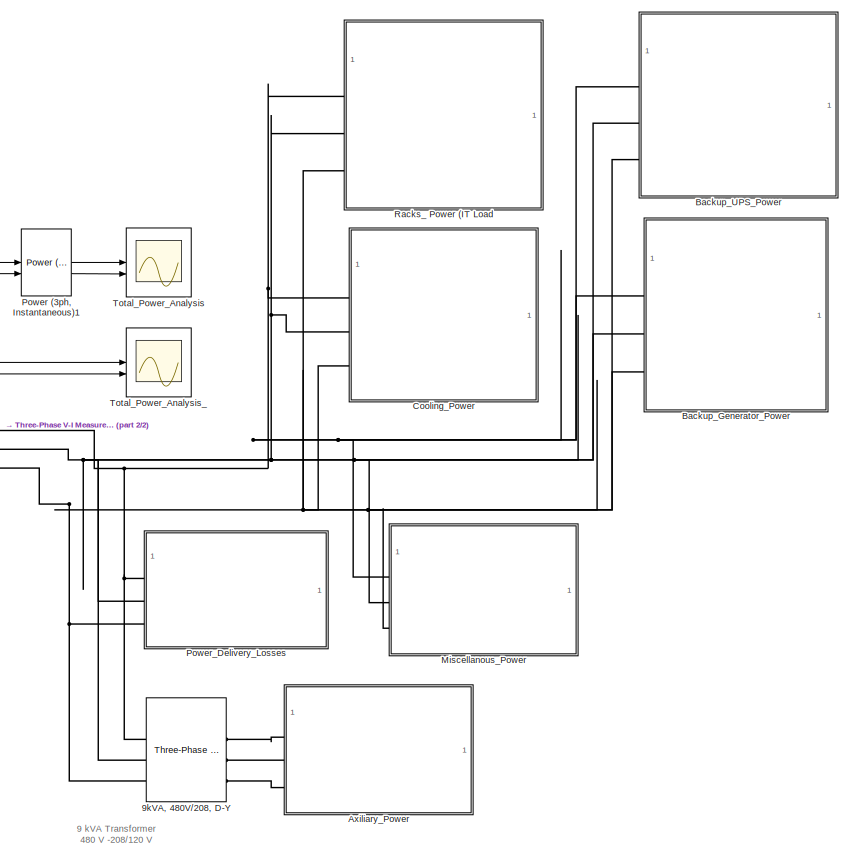
[diagram: root canvas - part 1/2, right side, full height]
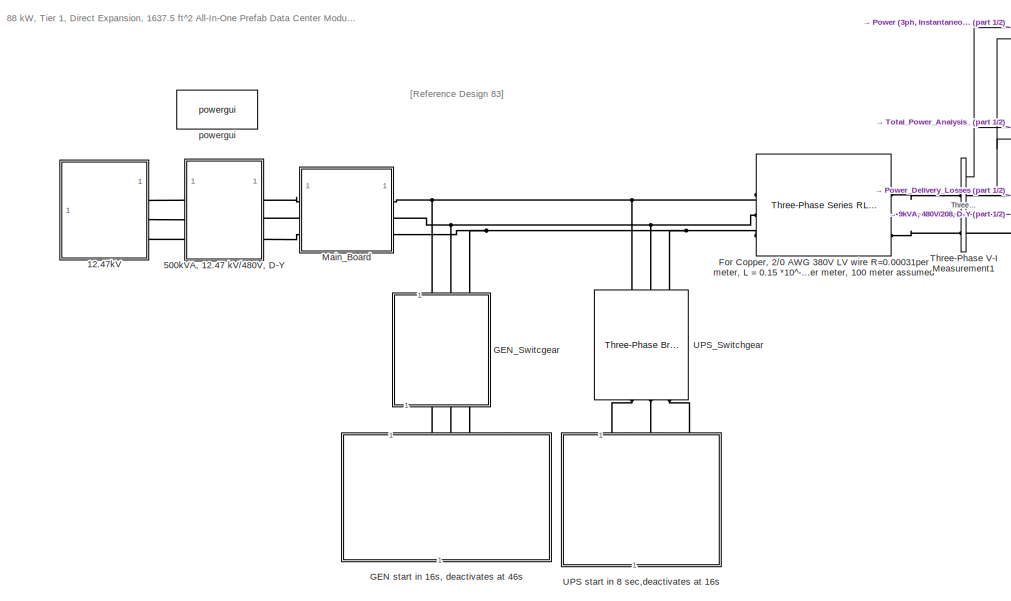
[diagram: root canvas - part 2/2, middle left region]
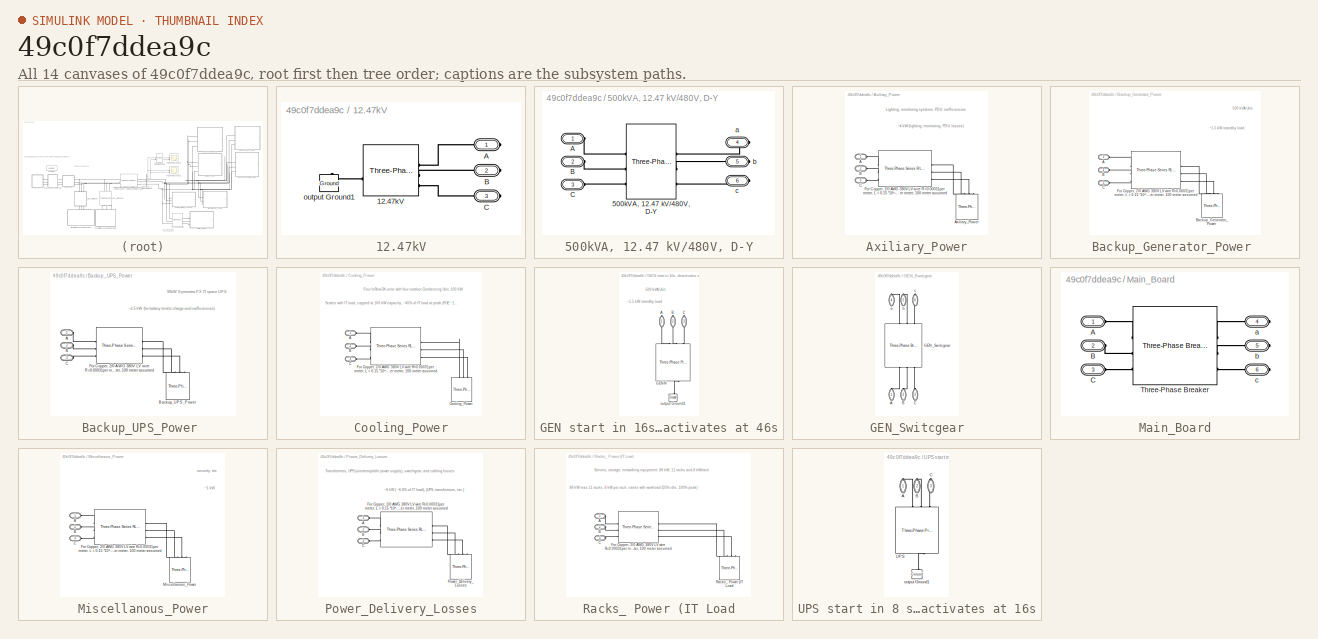
[diagram: thumbnail index - all 14 canvases of the model, root first then tree order]
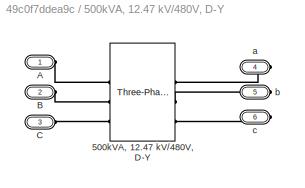
MODEL slx_49c0f7ddea9c
KIND model
CONFIG AbsTol = auto
CONFIG EnableMultiTasking = off
CONFIG FixedStep = auto
CONFIG MaxStep = auto
CONFIG MinStep = auto
CONFIG RelTol = 1e-3
CONFIG SampleTimeConstraint = Unconstrained
CONFIG SolverName = VariableStepAuto
CONFIG StartTime = 0.0
CONFIG StopTime = 60
BLOCK [SubSystem] 12.47kV
BLOCK [Reference] 12.47kV/12.47kV  REF=spsThreePhaseProgrammableVoltageSourceLib/Three-Phase
Programmable
Voltage Source
  SourceBlock = spsThreePhaseProgrammableVoltageSourceLib/Three-Phase\nProgrammable\nVoltage Source
  SourceType = Three-Phase Programmable Voltage Source
BLOCK [PMIOPort] 12.47kV/A
  Side = Right
BLOCK [PMIOPort] 12.47kV/B
  Port = 2
  Side = Right
BLOCK [PMIOPort] 12.47kV/C
  Port = 3
  Side = Right
BLOCK [Reference] 12.47kV/output Ground1  REF=spsGroundLib/Ground
  AttributesFormatString = \n
  NameLocation = right
  SourceBlock = spsGroundLib/Ground
  SourceType = Ground
BLOCK [SubSystem] 500kVA, 12.47 kV//480V, D-Y
BLOCK [Reference] 500kVA, 12.47 kV//480V, D-Y/500kVA, 12.47 kV//480V, D-Y  REF=spsThreePhaseTransformerTwoWindingsLib/Three-Phase
Transformer
(Two Windings)
  LibrarySourceBlock = sps_lib/Power Grid Elements/Three-Phase\nTransformer\n(Two Windings)
  SourceBlock = spsThreePhaseTransformerTwoWindingsLib/Three-Phase\nTransformer\n(Two Windings)
  SourceType = Three-Phase Transformer (Two Windings)
BLOCK [PMIOPort] 500kVA, 12.47 kV//480V, D-Y/A
  Side = Left
BLOCK [PMIOPort] 500kVA, 12.47 kV//480V, D-Y/B
  Port = 2
  Side = Left
BLOCK [PMIOPort] 500kVA, 12.47 kV//480V, D-Y/C
  Port = 3
  Side = Left
BLOCK [PMIOPort] 500kVA, 12.47 kV//480V, D-Y/a
  Port = 4
  Side = Right
BLOCK [PMIOPort] 500kVA, 12.47 kV//480V, D-Y/b
  Port = 5
  Side = Right
BLOCK [PMIOPort] 500kVA, 12.47 kV//480V, D-Y/c
  Port = 6
  Side = Right
BLOCK [Reference] 9kVA, 480V//208, D-Y  REF=spsThreePhaseTransformerTwoWindingsLib/Three-Phase
Transformer
(Two Windings)
  LibrarySourceBlock = sps_lib/Power Grid Elements/Three-Phase\nTransformer\n(Two Windings)
  SourceBlock = spsThreePhaseTransformerTwoWindingsLib/Three-Phase\nTransformer\n(Two Windings)
  SourceType = Three-Phase Transformer (Two Windings)
BLOCK [SubSystem] Axiliary_Power
BLOCK [PMIOPort] Axiliary_Power/A
  Side = Left
BLOCK [Reference] Axiliary_Power/Axiliary_Power  REF=spsThreePhaseSeriesRLCLoadLib/Three-Phase
Series RLC Load
  AttributesFormatString = \n
  LibrarySourceBlock = sps_lib/Passives/Three-Phase\nSeries RLC Load
  SourceBlock = spsThreePhaseSeriesRLCLoadLib/Three-Phase\nSeries RLC Load
  SourceType = Three-Phase Series RLC Load
BLOCK [PMIOPort] Axiliary_Power/B
  Port = 2
  Side = Left
BLOCK [PMIOPort] Axiliary_Power/C
  Port = 3
  Side = Left
BLOCK [Reference] Axiliary_Power/For Copper, 2//0 AWG 380V LV wire R=0.00031per meter, L = 0.15 *10^-6 H per meter, 100 meter assumed   REF=spsThreePhaseSeriesRLCBranchLib/Three-Phase
Series RLC Branch
  AttributesFormatString = \n
  SourceBlock = spsThreePhaseSeriesRLCBranchLib/Three-Phase\nSeries RLC Branch
  SourceType = Three-Phase Series RLC Branch
BLOCK [SubSystem] Backup_Generator_Power 
BLOCK [PMIOPort] Backup_Generator_Power /A
  Side = Left
BLOCK [PMIOPort] Backup_Generator_Power /B
  Port = 2
  Side = Left
BLOCK [Reference] Backup_Generator_Power /Backup_Generator_Power  REF=spsThreePhaseSeriesRLCLoadLib/Three-Phase
Series RLC Load
  AttributesFormatString = \n
  LibrarySourceBlock = sps_lib/Passives/Three-Phase\nSeries RLC Load
  SourceBlock = spsThreePhaseSeriesRLCLoadLib/Three-Phase\nSeries RLC Load
  SourceType = Three-Phase Series RLC Load
BLOCK [PMIOPort] Backup_Generator_Power /C
  Port = 3
  Side = Left
BLOCK [Reference] Backup_Generator_Power /For Copper, 2//0 AWG 380V LV wire R=0.00031per meter, L = 0.15 *10^-6 H per meter, 100 meter assumed   REF=spsThreePhaseSeriesRLCBranchLib/Three-Phase
Series RLC Branch
  AttributesFormatString = \n
  SourceBlock = spsThreePhaseSeriesRLCBranchLib/Three-Phase\nSeries RLC Branch
  SourceType = Three-Phase Series RLC Branch
BLOCK [SubSystem] Backup_UPS_Power 
BLOCK [PMIOPort] Backup_UPS_Power /A
  Side = Left
BLOCK [PMIOPort] Backup_UPS_Power /B
  Port = 2
  Side = Left
BLOCK [Reference] Backup_UPS_Power /Backup_UPS_Power  REF=spsThreePhaseSeriesRLCLoadLib/Three-Phase
Series RLC Load
  AttributesFormatString = \n
  LibrarySourceBlock = sps_lib/Passives/Three-Phase\nSeries RLC Load
  SourceBlock = spsThreePhaseSeriesRLCLoadLib/Three-Phase\nSeries RLC Load
  SourceType = Three-Phase Series RLC Load
BLOCK [PMIOPort] Backup_UPS_Power /C
  Port = 3
  Side = Left
BLOCK [Reference] Backup_UPS_Power /For Copper, 2//0 AWG 380V LV wire R=0.00031per meter, L = 0.15 *10^-6 H per meter, 100 meter assumed   REF=spsThreePhaseSeriesRLCBranchLib/Three-Phase
Series RLC Branch
  AttributesFormatString = \n
  SourceBlock = spsThreePhaseSeriesRLCBranchLib/Three-Phase\nSeries RLC Branch
  SourceType = Three-Phase Series RLC Branch
BLOCK [SubSystem] Cooling_Power
BLOCK [PMIOPort] Cooling_Power/A
  Side = Left
BLOCK [PMIOPort] Cooling_Power/B
  Port = 2
  Side = Left
BLOCK [PMIOPort] Cooling_Power/C
  Port = 3
  Side = Left
BLOCK [Reference] Cooling_Power/Cooling_Power  REF=spsThreePhaseSeriesRLCLoadLib/Three-Phase
Series RLC Load
  AttributesFormatString = \n
  LibrarySourceBlock = sps_lib/Passives/Three-Phase\nSeries RLC Load
  SourceBlock = spsThreePhaseSeriesRLCLoadLib/Three-Phase\nSeries RLC Load
  SourceType = Three-Phase Series RLC Load
BLOCK [Reference] Cooling_Power/For Copper, 2//0 AWG 380V LV wire R=0.00031per meter, L = 0.15 *10^-6 H per meter, 100 meter assumed   REF=spsThreePhaseSeriesRLCBranchLib/Three-Phase
Series RLC Branch
  AttributesFormatString = \n
  SourceBlock = spsThreePhaseSeriesRLCBranchLib/Three-Phase\nSeries RLC Branch
  SourceType = Three-Phase Series RLC Branch
BLOCK [Reference] For Copper, 2//0 AWG 380V LV wire R=0.00031per meter, L = 0.15 *10^-6 H per meter, 100 meter assumed   REF=spsThreePhaseSeriesRLCBranchLib/Three-Phase
Series RLC Branch
  AttributesFormatString = \n
  SourceBlock = spsThreePhaseSeriesRLCBranchLib/Three-Phase\nSeries RLC Branch
  SourceType = Three-Phase Series RLC Branch
BLOCK [SubSystem] GEN start in 16s, deactivates at 46s
  NameLocation = left
BLOCK [PMIOPort] GEN start in 16s, deactivates at 46s/A
  NameLocation = right
  Side = Right
BLOCK [PMIOPort] GEN start in 16s, deactivates at 46s/B
  NameLocation = right
  Port = 2
  Side = Right
BLOCK [PMIOPort] GEN start in 16s, deactivates at 46s/C
  NameLocation = right
  Port = 3
  Side = Right
BLOCK [Reference] GEN start in 16s, deactivates at 46s/GEN N  REF=spsThreePhaseProgrammableVoltageSourceLib/Three-Phase
Programmable
Voltage Source
  NameLocation = right
  SourceBlock = spsThreePhaseProgrammableVoltageSourceLib/Three-Phase\nProgrammable\nVoltage Source
  SourceType = Three-Phase Programmable Voltage Source
BLOCK [Reference] GEN start in 16s, deactivates at 46s/output Ground1  REF=spsGroundLib/Ground
  AttributesFormatString = \n
  NameLocation = right
  SourceBlock = spsGroundLib/Ground
  SourceType = Ground
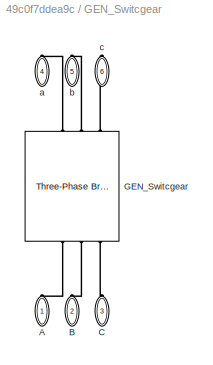
BLOCK [SubSystem] GEN_Switcgear
  NameLocation = left
BLOCK [PMIOPort] GEN_Switcgear/A
  NameLocation = right
  Side = Left
BLOCK [PMIOPort] GEN_Switcgear/B
  NameLocation = right
  Port = 2
  Side = Left
BLOCK [PMIOPort] GEN_Switcgear/C
  NameLocation = right
  Port = 3
  Side = Left
BLOCK [Reference] GEN_Switcgear/GEN_Switcgear  REF=spsThreePhaseBreakerLib/Three-Phase Breaker
  LibrarySourceBlock = sps_lib/Power Grid Elements/Three-Phase Breaker
  NameLocation = left
  SourceBlock = spsThreePhaseBreakerLib/Three-Phase Breaker
  SourceType = Three-Phase Breaker
BLOCK [PMIOPort] GEN_Switcgear/a
  NameLocation = right
  Port = 4
  Side = Right
BLOCK [PMIOPort] GEN_Switcgear/b
  NameLocation = right
  Port = 5
  Side = Right
BLOCK [PMIOPort] GEN_Switcgear/c
  NameLocation = right
  Port = 6
  Side = Right
BLOCK [SubSystem] Main_Board
BLOCK [PMIOPort] Main_Board/A
  Side = Left
BLOCK [PMIOPort] Main_Board/B
  Port = 2
  Side = Left
BLOCK [PMIOPort] Main_Board/C
  Port = 3
  Side = Left
BLOCK [Reference] Main_Board/Three-Phase Breaker  REF=spsThreePhaseBreakerLib/Three-Phase Breaker
  LibrarySourceBlock = sps_lib/Power Grid Elements/Three-Phase Breaker
  SourceBlock = spsThreePhaseBreakerLib/Three-Phase Breaker
  SourceType = Three-Phase Breaker
BLOCK [PMIOPort] Main_Board/a
  Port = 4
  Side = Right
BLOCK [PMIOPort] Main_Board/b
  Port = 5
  Side = Right
BLOCK [PMIOPort] Main_Board/c
  Port = 6
  Side = Right
BLOCK [SubSystem] Miscellanous_Power
BLOCK [PMIOPort] Miscellanous_Power/A
  Side = Left
BLOCK [PMIOPort] Miscellanous_Power/B
  Port = 2
  Side = Left
BLOCK [PMIOPort] Miscellanous_Power/C
  Port = 3
  Side = Left
BLOCK [Reference] Miscellanous_Power/For Copper, 2//0 AWG 380V LV wire R=0.00031per meter, L = 0.15 *10^-6 H per meter, 100 meter assumed   REF=spsThreePhaseSeriesRLCBranchLib/Three-Phase
Series RLC Branch
  AttributesFormatString = \n
  SourceBlock = spsThreePhaseSeriesRLCBranchLib/Three-Phase\nSeries RLC Branch
  SourceType = Three-Phase Series RLC Branch
BLOCK [Reference] Miscellanous_Power/Miscellanous_Power  REF=spsThreePhaseSeriesRLCLoadLib/Three-Phase
Series RLC Load
  AttributesFormatString = \n
  LibrarySourceBlock = sps_lib/Passives/Three-Phase\nSeries RLC Load
  SourceBlock = spsThreePhaseSeriesRLCLoadLib/Three-Phase\nSeries RLC Load
  SourceType = Three-Phase Series RLC Load
BLOCK [Reference] Power (3ph, Instantaneous)1  REF=spsPower3phInstantaneousLib/Power
(3ph, Instantaneous)
  SourceBlock = spsPower3phInstantaneousLib/Power\n(3ph, Instantaneous)
  SourceType = Power (3ph, Instantaneous)
BLOCK [SubSystem] Power_Delivery_Losses
BLOCK [PMIOPort] Power_Delivery_Losses/A
  Side = Left
BLOCK [PMIOPort] Power_Delivery_Losses/B
  Port = 2
  Side = Left
BLOCK [PMIOPort] Power_Delivery_Losses/C
  Port = 3
  Side = Left
BLOCK [Reference] Power_Delivery_Losses/For Copper, 2//0 AWG 380V LV wire R=0.00031per meter, L = 0.15 *10^-6 H per meter, 100 meter assumed   REF=spsThreePhaseSeriesRLCBranchLib/Three-Phase
Series RLC Branch
  AttributesFormatString = \n
  SourceBlock = spsThreePhaseSeriesRLCBranchLib/Three-Phase\nSeries RLC Branch
  SourceType = Three-Phase Series RLC Branch
BLOCK [Reference] Power_Delivery_Losses/Power_Delivery_Losses  REF=spsThreePhaseSeriesRLCLoadLib/Three-Phase
Series RLC Load
  AttributesFormatString = \n
  LibrarySourceBlock = sps_lib/Passives/Three-Phase\nSeries RLC Load
  SourceBlock = spsThreePhaseSeriesRLCLoadLib/Three-Phase\nSeries RLC Load
  SourceType = Three-Phase Series RLC Load
BLOCK [SubSystem] Racks_ Power (IT Load
BLOCK [PMIOPort] Racks_ Power (IT Load/A
  Side = Left
BLOCK [PMIOPort] Racks_ Power (IT Load/B
  Port = 2
  Side = Left
BLOCK [PMIOPort] Racks_ Power (IT Load/C
  Port = 3
  Side = Left
BLOCK [Reference] Racks_ Power (IT Load/For Copper, 2//0 AWG 380V LV wire R=0.00031per meter, L = 0.15 *10^-6 H per meter, 100 meter assumed   REF=spsThreePhaseSeriesRLCBranchLib/Three-Phase
Series RLC Branch
  AttributesFormatString = \n
  SourceBlock = spsThreePhaseSeriesRLCBranchLib/Three-Phase\nSeries RLC Branch
  SourceType = Three-Phase Series RLC Branch
BLOCK [Reference] Racks_ Power (IT Load/Racks_ Power (IT Load  REF=spsThreePhaseSeriesRLCLoadLib/Three-Phase
Series RLC Load
  AttributesFormatString = \n
  LibrarySourceBlock = sps_lib/Passives/Three-Phase\nSeries RLC Load
  SourceBlock = spsThreePhaseSeriesRLCLoadLib/Three-Phase\nSeries RLC Load
  SourceType = Three-Phase Series RLC Load
BLOCK [Reference] Three-Phase V-I Measurement1  REF=spsThreePhaseVIMeasurementLib/Three-Phase
V-I Measurement
  SourceBlock = spsThreePhaseVIMeasurementLib/Three-Phase\nV-I Measurement
  SourceType = Three-Phase VI Measurement
BLOCK [Scope] Total_Power_Analysis
  Floating = off
  NumInputPorts = 2
  ScopeSpecificationString = Simulink.scopes.TimeScopeBlockCfg('CurrentConfiguration', extmgr.ConfigurationSet(extmgr.Configuration('Core','General UI',true),extmgr.Configuration('Core','Source UI',true),extmgr.Configuration('Sources','WiredSimulink',true,'DataLoggingVariableName','ScopeData1'),extmgr.Configuration('Visuals','Time Domain',true,'TimeAxisLabels','All','SerializedDisplays',{struct('MinYLimReal','-35299.64387','M...<+2297ch>
BLOCK [Scope] Total_Power_Analysis_
  Floating = off
  NumInputPorts = 2
  ScopeSpecificationString = Simulink.scopes.TimeScopeBlockCfg('CurrentConfiguration', extmgr.ConfigurationSet(extmgr.Configuration('Core','General UI',true),extmgr.Configuration('Core','Source UI',true),extmgr.Configuration('Sources','WiredSimulink',true,'DataLoggingVariableName','ScopeData1'),extmgr.Configuration('Visuals','Time Domain',true,'TimeAxisLabels','All','SerializedDisplays',{struct('MinYLimReal','-488.76746','Max...<+2048ch>
BLOCK [SubSystem] UPS start in 8 sec,deactivates at 16s
  NameLocation = right
BLOCK [PMIOPort] UPS start in 8 sec,deactivates at 16s/A
  NameLocation = right
  Side = Right
BLOCK [PMIOPort] UPS start in 8 sec,deactivates at 16s/B
  NameLocation = right
  Port = 2
  Side = Right
BLOCK [PMIOPort] UPS start in 8 sec,deactivates at 16s/C
  NameLocation = right
  Port = 3
  Side = Right
BLOCK [Reference] UPS start in 8 sec,deactivates at 16s/UPS  REF=spsThreePhaseProgrammableVoltageSourceLib/Three-Phase
Programmable
Voltage Source
  NameLocation = right
  SourceBlock = spsThreePhaseProgrammableVoltageSourceLib/Three-Phase\nProgrammable\nVoltage Source
  SourceType = Three-Phase Programmable Voltage Source
BLOCK [Reference] UPS start in 8 sec,deactivates at 16s/output Ground1  REF=spsGroundLib/Ground
  AttributesFormatString = \n
  NameLocation = right
  SourceBlock = spsGroundLib/Ground
  SourceType = Ground
BLOCK [Reference] UPS_Switchgear  REF=spsThreePhaseBreakerLib/Three-Phase Breaker
  LibrarySourceBlock = sps_lib/Power Grid Elements/Three-Phase Breaker
  NameLocation = right
  SourceBlock = spsThreePhaseBreakerLib/Three-Phase Breaker
  SourceType = Three-Phase Breaker
BLOCK [Reference] powergui  REF=sps_lib/powergui
  LibrarySourceBlock = sps_lib/powergui
  Priority = 1
  SourceBlock = sps_lib/powergui
  SourceType = PSB option menu block
ANNOTATION (root): 9 kVA Transformer 480 V -208/120 V
ANNOTATION (root): 88 kW, Tier 1, Direct Expansion, 1637.5 ft^2 All-In-One Prefab Data Center Module - PDU
ANNOTATION (root): [Reference Design 83]
ANNOTATION Axiliary_Power: Lighting, monitoring systems, PDU inefficiencies
ANNOTATION Axiliary_Power: ~4 kW (lighting, monitoring, PDU losses)
ANNOTATION Backup_Generator_Power : 500 kVA Unit ​
ANNOTATION Backup_Generator_Power : ~1.5 kW standby load ​
ANNOTATION Backup_UPS_Power : ~2.5 kW (for battery trickle charge and inefficiencies)
ANNOTATION Backup_UPS_Power : 90kW Symmetra PX IT space UPS ​
ANNOTATION Cooling_Power: Four InRow DX units with four outdoor Condensing Unit, 100 kW
ANNOTATION Cooling_Power: Scales with IT load, capped at 100 kW capacity, ~45% of IT load at peak (PUE ~1.64)
ANNOTATION GEN start in 16s, deactivates at 46s: 500 kVA Unit ​
ANNOTATION GEN start in 16s, deactivates at 46s: ~1.5 kW standby load ​
ANNOTATION Miscellanous_Power: ~1 kW
ANNOTATION Miscellanous_Power: security, etc ​ ​
ANNOTATION Power_Delivery_Losses: Transformers, UPS (uninterruptible power supply), switchgear, and cabling losses
ANNOTATION Power_Delivery_Losses: ~6 kW ( ~6.8% of IT load), (UPS, transformers, etc.)
ANNOTATION Racks_ Power (IT Load: Servers, storage, networking equipment. 88 kW, 11 racks and 8 kW/rack
ANNOTATION Racks_ Power (IT Load: 88 kW max,11 racks, 8 kW per rack, varies with workload (50% idle, 100% peak)
LINE Power (3ph, Instantaneous)1:1 -> Total_Power_Analysis:1
LINE Power (3ph, Instantaneous)1:2 -> Total_Power_Analysis:2
NET Three-Phase V-I Measurement1:1 -> Power (3ph, Instantaneous)1:1, Total_Power_Analysis_:1
NET Three-Phase V-I Measurement1:2 -> Power (3ph, Instantaneous)1:2, Total_Power_Analysis_:2
PLINE 12.47kV/12.47kV:LConn1 -- 12.47kV/output Ground1:LConn1
PLINE 12.47kV/12.47kV:RConn1 -- 12.47kV/A:RConn1
PLINE 12.47kV/12.47kV:RConn2 -- 12.47kV/B:RConn1
PLINE 12.47kV/12.47kV:RConn3 -- 12.47kV/C:RConn1
PLINE 12.47kV:RConn1 -- 500kVA, 12.47 kV//480V, D-Y:LConn1
PLINE 12.47kV:RConn2 -- 500kVA, 12.47 kV//480V, D-Y:LConn2
PLINE 12.47kV:RConn3 -- 500kVA, 12.47 kV//480V, D-Y:LConn3
PLINE 500kVA, 12.47 kV//480V, D-Y/500kVA, 12.47 kV//480V, D-Y:LConn1 -- 500kVA, 12.47 kV//480V, D-Y/A:RConn1
PLINE 500kVA, 12.47 kV//480V, D-Y/500kVA, 12.47 kV//480V, D-Y:LConn2 -- 500kVA, 12.47 kV//480V, D-Y/B:RConn1
PLINE 500kVA, 12.47 kV//480V, D-Y/500kVA, 12.47 kV//480V, D-Y:LConn3 -- 500kVA, 12.47 kV//480V, D-Y/C:RConn1
PLINE 500kVA, 12.47 kV//480V, D-Y/500kVA, 12.47 kV//480V, D-Y:RConn1 -- 500kVA, 12.47 kV//480V, D-Y/a:RConn1
PLINE 500kVA, 12.47 kV//480V, D-Y/500kVA, 12.47 kV//480V, D-Y:RConn2 -- 500kVA, 12.47 kV//480V, D-Y/b:RConn1
PLINE 500kVA, 12.47 kV//480V, D-Y/500kVA, 12.47 kV//480V, D-Y:RConn3 -- 500kVA, 12.47 kV//480V, D-Y/c:RConn1
PLINE 500kVA, 12.47 kV//480V, D-Y:RConn1 -- Main_Board:LConn1
PLINE 500kVA, 12.47 kV//480V, D-Y:RConn2 -- Main_Board:LConn2
PLINE 500kVA, 12.47 kV//480V, D-Y:RConn3 -- Main_Board:LConn3
PNET net1: 9kVA, 480V//208, D-Y:LConn1 -- Backup_Generator_Power :LConn1 -- Backup_UPS_Power :LConn1 -- Cooling_Power:LConn1 -- Miscellanous_Power:LConn1 -- Power_Delivery_Losses:LConn1 -- Racks_ Power (IT Load:LConn1 -- Three-Phase V-I Measurement1:RConn1
PNET net2: 9kVA, 480V//208, D-Y:LConn2 -- Backup_Generator_Power :LConn2 -- Backup_UPS_Power :LConn2 -- Cooling_Power:LConn2 -- Miscellanous_Power:LConn2 -- Power_Delivery_Losses:LConn2 -- Racks_ Power (IT Load:LConn2 -- Three-Phase V-I Measurement1:RConn2
PNET net3: 9kVA, 480V//208, D-Y:LConn3 -- Backup_Generator_Power :LConn3 -- Backup_UPS_Power :LConn3 -- Cooling_Power:LConn3 -- Miscellanous_Power:LConn3 -- Power_Delivery_Losses:LConn3 -- Racks_ Power (IT Load:LConn3 -- Three-Phase V-I Measurement1:RConn3
PLINE 9kVA, 480V//208, D-Y:RConn1 -- Axiliary_Power:LConn1
PLINE 9kVA, 480V//208, D-Y:RConn2 -- Axiliary_Power:LConn2
PLINE 9kVA, 480V//208, D-Y:RConn3 -- Axiliary_Power:LConn3
PLINE Axiliary_Power/A:RConn1 -- Axiliary_Power/For Copper, 2//0 AWG 380V LV wire R=0.00031per meter, L = 0.15 *10^-6 H per meter, 100 meter assumed :LConn1
PLINE Axiliary_Power/Axiliary_Power:LConn1 -- Axiliary_Power/For Copper, 2//0 AWG 380V LV wire R=0.00031per meter, L = 0.15 *10^-6 H per meter, 100 meter assumed :RConn1
PLINE Axiliary_Power/Axiliary_Power:LConn2 -- Axiliary_Power/For Copper, 2//0 AWG 380V LV wire R=0.00031per meter, L = 0.15 *10^-6 H per meter, 100 meter assumed :RConn2
PLINE Axiliary_Power/Axiliary_Power:LConn3 -- Axiliary_Power/For Copper, 2//0 AWG 380V LV wire R=0.00031per meter, L = 0.15 *10^-6 H per meter, 100 meter assumed :RConn3
PLINE Axiliary_Power/B:RConn1 -- Axiliary_Power/For Copper, 2//0 AWG 380V LV wire R=0.00031per meter, L = 0.15 *10^-6 H per meter, 100 meter assumed :LConn2
PLINE Axiliary_Power/C:RConn1 -- Axiliary_Power/For Copper, 2//0 AWG 380V LV wire R=0.00031per meter, L = 0.15 *10^-6 H per meter, 100 meter assumed :LConn3
PLINE Backup_Generator_Power /A:RConn1 -- Backup_Generator_Power /For Copper, 2//0 AWG 380V LV wire R=0.00031per meter, L = 0.15 *10^-6 H per meter, 100 meter assumed :LConn1
PLINE Backup_Generator_Power /B:RConn1 -- Backup_Generator_Power /For Copper, 2//0 AWG 380V LV wire R=0.00031per meter, L = 0.15 *10^-6 H per meter, 100 meter assumed :LConn2
PLINE Backup_Generator_Power /Backup_Generator_Power:LConn1 -- Backup_Generator_Power /For Copper, 2//0 AWG 380V LV wire R=0.00031per meter, L = 0.15 *10^-6 H per meter, 100 meter assumed :RConn1
PLINE Backup_Generator_Power /Backup_Generator_Power:LConn2 -- Backup_Generator_Power /For Copper, 2//0 AWG 380V LV wire R=0.00031per meter, L = 0.15 *10^-6 H per meter, 100 meter assumed :RConn2
PLINE Backup_Generator_Power /Backup_Generator_Power:LConn3 -- Backup_Generator_Power /For Copper, 2//0 AWG 380V LV wire R=0.00031per meter, L = 0.15 *10^-6 H per meter, 100 meter assumed :RConn3
PLINE Backup_Generator_Power /C:RConn1 -- Backup_Generator_Power /For Copper, 2//0 AWG 380V LV wire R=0.00031per meter, L = 0.15 *10^-6 H per meter, 100 meter assumed :LConn3
PLINE Backup_UPS_Power /A:RConn1 -- Backup_UPS_Power /For Copper, 2//0 AWG 380V LV wire R=0.00031per meter, L = 0.15 *10^-6 H per meter, 100 meter assumed :LConn1
PLINE Backup_UPS_Power /B:RConn1 -- Backup_UPS_Power /For Copper, 2//0 AWG 380V LV wire R=0.00031per meter, L = 0.15 *10^-6 H per meter, 100 meter assumed :LConn2
PLINE Backup_UPS_Power /Backup_UPS_Power:LConn1 -- Backup_UPS_Power /For Copper, 2//0 AWG 380V LV wire R=0.00031per meter, L = 0.15 *10^-6 H per meter, 100 meter assumed :RConn1
PLINE Backup_UPS_Power /Backup_UPS_Power:LConn2 -- Backup_UPS_Power /For Copper, 2//0 AWG 380V LV wire R=0.00031per meter, L = 0.15 *10^-6 H per meter, 100 meter assumed :RConn2
PLINE Backup_UPS_Power /Backup_UPS_Power:LConn3 -- Backup_UPS_Power /For Copper, 2//0 AWG 380V LV wire R=0.00031per meter, L = 0.15 *10^-6 H per meter, 100 meter assumed :RConn3
PLINE Backup_UPS_Power /C:RConn1 -- Backup_UPS_Power /For Copper, 2//0 AWG 380V LV wire R=0.00031per meter, L = 0.15 *10^-6 H per meter, 100 meter assumed :LConn3
PLINE Cooling_Power/A:RConn1 -- Cooling_Power/For Copper, 2//0 AWG 380V LV wire R=0.00031per meter, L = 0.15 *10^-6 H per meter, 100 meter assumed :LConn1
PLINE Cooling_Power/B:RConn1 -- Cooling_Power/For Copper, 2//0 AWG 380V LV wire R=0.00031per meter, L = 0.15 *10^-6 H per meter, 100 meter assumed :LConn2
PLINE Cooling_Power/C:RConn1 -- Cooling_Power/For Copper, 2//0 AWG 380V LV wire R=0.00031per meter, L = 0.15 *10^-6 H per meter, 100 meter assumed :LConn3
PLINE Cooling_Power/Cooling_Power:LConn1 -- Cooling_Power/For Copper, 2//0 AWG 380V LV wire R=0.00031per meter, L = 0.15 *10^-6 H per meter, 100 meter assumed :RConn1
PLINE Cooling_Power/Cooling_Power:LConn2 -- Cooling_Power/For Copper, 2//0 AWG 380V LV wire R=0.00031per meter, L = 0.15 *10^-6 H per meter, 100 meter assumed :RConn2
PLINE Cooling_Power/Cooling_Power:LConn3 -- Cooling_Power/For Copper, 2//0 AWG 380V LV wire R=0.00031per meter, L = 0.15 *10^-6 H per meter, 100 meter assumed :RConn3
PNET net4: For Copper, 2//0 AWG 380V LV wire R=0.00031per meter, L = 0.15 *10^-6 H per meter, 100 meter assumed :LConn1 -- GEN_Switcgear:RConn1 -- Main_Board:RConn1 -- UPS_Switchgear:RConn1
PNET net5: For Copper, 2//0 AWG 380V LV wire R=0.00031per meter, L = 0.15 *10^-6 H per meter, 100 meter assumed :LConn2 -- GEN_Switcgear:RConn2 -- Main_Board:RConn2 -- UPS_Switchgear:RConn2
PNET net6: For Copper, 2//0 AWG 380V LV wire R=0.00031per meter, L = 0.15 *10^-6 H per meter, 100 meter assumed :LConn3 -- GEN_Switcgear:RConn3 -- Main_Board:RConn3 -- UPS_Switchgear:RConn3
PLINE For Copper, 2//0 AWG 380V LV wire R=0.00031per meter, L = 0.15 *10^-6 H per meter, 100 meter assumed :RConn1 -- Three-Phase V-I Measurement1:LConn1
PLINE For Copper, 2//0 AWG 380V LV wire R=0.00031per meter, L = 0.15 *10^-6 H per meter, 100 meter assumed :RConn2 -- Three-Phase V-I Measurement1:LConn2
PLINE For Copper, 2//0 AWG 380V LV wire R=0.00031per meter, L = 0.15 *10^-6 H per meter, 100 meter assumed :RConn3 -- Three-Phase V-I Measurement1:LConn3
PLINE GEN start in 16s, deactivates at 46s/A:RConn1 -- GEN start in 16s, deactivates at 46s/GEN N:RConn1
PLINE GEN start in 16s, deactivates at 46s/B:RConn1 -- GEN start in 16s, deactivates at 46s/GEN N:RConn2
PLINE GEN start in 16s, deactivates at 46s/C:RConn1 -- GEN start in 16s, deactivates at 46s/GEN N:RConn3
PLINE GEN start in 16s, deactivates at 46s/GEN N:LConn1 -- GEN start in 16s, deactivates at 46s/output Ground1:LConn1
PLINE GEN start in 16s, deactivates at 46s:RConn1 -- GEN_Switcgear:LConn1
PLINE GEN start in 16s, deactivates at 46s:RConn2 -- GEN_Switcgear:LConn2
PLINE GEN start in 16s, deactivates at 46s:RConn3 -- GEN_Switcgear:LConn3
PLINE GEN_Switcgear/A:RConn1 -- GEN_Switcgear/GEN_Switcgear:LConn1
PLINE GEN_Switcgear/B:RConn1 -- GEN_Switcgear/GEN_Switcgear:LConn2
PLINE GEN_Switcgear/C:RConn1 -- GEN_Switcgear/GEN_Switcgear:LConn3
PLINE GEN_Switcgear/GEN_Switcgear:RConn1 -- GEN_Switcgear/a:RConn1
PLINE GEN_Switcgear/GEN_Switcgear:RConn2 -- GEN_Switcgear/b:RConn1
PLINE GEN_Switcgear/GEN_Switcgear:RConn3 -- GEN_Switcgear/c:RConn1
PLINE Main_Board/A:RConn1 -- Main_Board/Three-Phase Breaker:LConn1
PLINE Main_Board/B:RConn1 -- Main_Board/Three-Phase Breaker:LConn2
PLINE Main_Board/C:RConn1 -- Main_Board/Three-Phase Breaker:LConn3
PLINE Main_Board/Three-Phase Breaker:RConn1 -- Main_Board/a:RConn1
PLINE Main_Board/Three-Phase Breaker:RConn2 -- Main_Board/b:RConn1
PLINE Main_Board/Three-Phase Breaker:RConn3 -- Main_Board/c:RConn1
PLINE Miscellanous_Power/A:RConn1 -- Miscellanous_Power/For Copper, 2//0 AWG 380V LV wire R=0.00031per meter, L = 0.15 *10^-6 H per meter, 100 meter assumed :LConn1
PLINE Miscellanous_Power/B:RConn1 -- Miscellanous_Power/For Copper, 2//0 AWG 380V LV wire R=0.00031per meter, L = 0.15 *10^-6 H per meter, 100 meter assumed :LConn2
PLINE Miscellanous_Power/C:RConn1 -- Miscellanous_Power/For Copper, 2//0 AWG 380V LV wire R=0.00031per meter, L = 0.15 *10^-6 H per meter, 100 meter assumed :LConn3
PLINE Miscellanous_Power/For Copper, 2//0 AWG 380V LV wire R=0.00031per meter, L = 0.15 *10^-6 H per meter, 100 meter assumed :RConn1 -- Miscellanous_Power/Miscellanous_Power:LConn1
PLINE Miscellanous_Power/For Copper, 2//0 AWG 380V LV wire R=0.00031per meter, L = 0.15 *10^-6 H per meter, 100 meter assumed :RConn2 -- Miscellanous_Power/Miscellanous_Power:LConn2
PLINE Miscellanous_Power/For Copper, 2//0 AWG 380V LV wire R=0.00031per meter, L = 0.15 *10^-6 H per meter, 100 meter assumed :RConn3 -- Miscellanous_Power/Miscellanous_Power:LConn3
PLINE Power_Delivery_Losses/A:RConn1 -- Power_Delivery_Losses/For Copper, 2//0 AWG 380V LV wire R=0.00031per meter, L = 0.15 *10^-6 H per meter, 100 meter assumed :LConn1
PLINE Power_Delivery_Losses/B:RConn1 -- Power_Delivery_Losses/For Copper, 2//0 AWG 380V LV wire R=0.00031per meter, L = 0.15 *10^-6 H per meter, 100 meter assumed :LConn2
PLINE Power_Delivery_Losses/C:RConn1 -- Power_Delivery_Losses/For Copper, 2//0 AWG 380V LV wire R=0.00031per meter, L = 0.15 *10^-6 H per meter, 100 meter assumed :LConn3
PLINE Power_Delivery_Losses/For Copper, 2//0 AWG 380V LV wire R=0.00031per meter, L = 0.15 *10^-6 H per meter, 100 meter assumed :RConn1 -- Power_Delivery_Losses/Power_Delivery_Losses:LConn1
PLINE Power_Delivery_Losses/For Copper, 2//0 AWG 380V LV wire R=0.00031per meter, L = 0.15 *10^-6 H per meter, 100 meter assumed :RConn2 -- Power_Delivery_Losses/Power_Delivery_Losses:LConn2
PLINE Power_Delivery_Losses/For Copper, 2//0 AWG 380V LV wire R=0.00031per meter, L = 0.15 *10^-6 H per meter, 100 meter assumed :RConn3 -- Power_Delivery_Losses/Power_Delivery_Losses:LConn3
PLINE Racks_ Power (IT Load/A:RConn1 -- Racks_ Power (IT Load/For Copper, 2//0 AWG 380V LV wire R=0.00031per meter, L = 0.15 *10^-6 H per meter, 100 meter assumed :LConn1
PLINE Racks_ Power (IT Load/B:RConn1 -- Racks_ Power (IT Load/For Copper, 2//0 AWG 380V LV wire R=0.00031per meter, L = 0.15 *10^-6 H per meter, 100 meter assumed :LConn2
PLINE Racks_ Power (IT Load/C:RConn1 -- Racks_ Power (IT Load/For Copper, 2//0 AWG 380V LV wire R=0.00031per meter, L = 0.15 *10^-6 H per meter, 100 meter assumed :LConn3
PLINE Racks_ Power (IT Load/For Copper, 2//0 AWG 380V LV wire R=0.00031per meter, L = 0.15 *10^-6 H per meter, 100 meter assumed :RConn1 -- Racks_ Power (IT Load/Racks_ Power (IT Load:LConn1
PLINE Racks_ Power (IT Load/For Copper, 2//0 AWG 380V LV wire R=0.00031per meter, L = 0.15 *10^-6 H per meter, 100 meter assumed :RConn2 -- Racks_ Power (IT Load/Racks_ Power (IT Load:LConn2
PLINE Racks_ Power (IT Load/For Copper, 2//0 AWG 380V LV wire R=0.00031per meter, L = 0.15 *10^-6 H per meter, 100 meter assumed :RConn3 -- Racks_ Power (IT Load/Racks_ Power (IT Load:LConn3
PLINE UPS start in 8 sec,deactivates at 16s/A:RConn1 -- UPS start in 8 sec,deactivates at 16s/UPS:RConn1
PLINE UPS start in 8 sec,deactivates at 16s/B:RConn1 -- UPS start in 8 sec,deactivates at 16s/UPS:RConn2
PLINE UPS start in 8 sec,deactivates at 16s/C:RConn1 -- UPS start in 8 sec,deactivates at 16s/UPS:RConn3
PLINE UPS start in 8 sec,deactivates at 16s/UPS:LConn1 -- UPS start in 8 sec,deactivates at 16s/output Ground1:LConn1
PLINE UPS start in 8 sec,deactivates at 16s:RConn1 -- UPS_Switchgear:LConn1
PLINE UPS start in 8 sec,deactivates at 16s:RConn2 -- UPS_Switchgear:LConn2
PLINE UPS start in 8 sec,deactivates at 16s:RConn3 -- UPS_Switchgear:LConn3
note: NET lines group one-source signal fan-out (src -> all destinations, sorted); 1:1 wires keep LINE; PNET lines group multi-terminal physical nets as a canonical sorted terminal list (undirected conserving connections); 2-terminal nets keep the pairwise PLINE form
